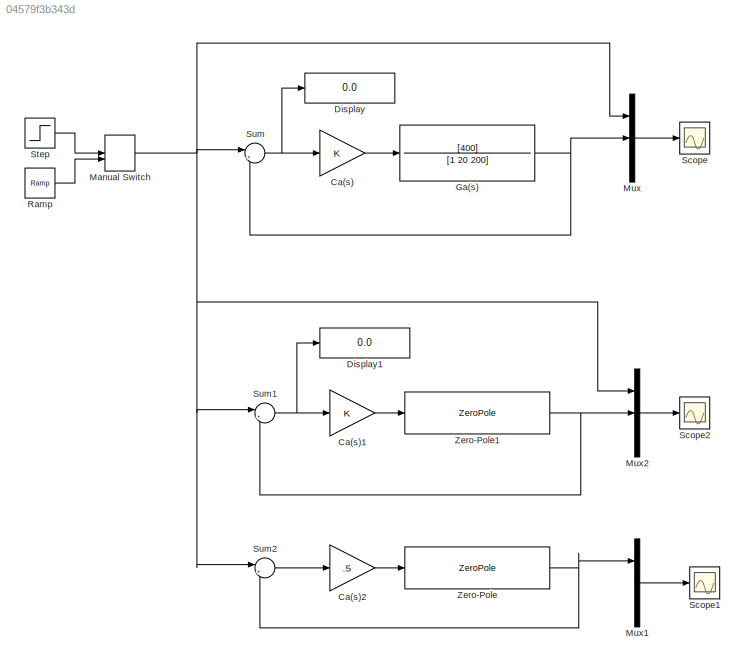
MODEL slx_04579f3b343d
KIND model
CONFIG AbsTol = auto
CONFIG EnableMultiTasking = off
CONFIG FixedStep = .02
CONFIG MaxStep = auto
CONFIG MinStep = auto
CONFIG RelTol = 1e-3
CONFIG SampleTimeConstraint = Unconstrained
CONFIG SolverName = VariableStepAuto
CONFIG StartTime = 0.0
CONFIG StopTime = 50
BLOCK [Gain] Ca(s)
BLOCK [Gain] Ca(s)1
BLOCK [Gain] Ca(s)2
  Gain = .5
BLOCK [Display] Display
  Decimation = 1
BLOCK [Display] Display1
  Decimation = 1
BLOCK [TransferFcn] Ga(s)
  Denominator = [1 20 200]
  Numerator = [400]
BLOCK [ManualSwitch] Manual Switch
  CurrentSetting = 0
BLOCK [Mux] Mux
  DisplayOption = bar
  Inputs = 3
BLOCK [Mux] Mux1
  DisplayOption = bar
  Inputs = 3
BLOCK [Mux] Mux2
  DisplayOption = bar
  Inputs = 3
BLOCK [Reference] Ramp  REF=simulink/Sources/Ramp
  SourceBlock = simulink/Sources/Ramp
  SourceType = Ramp
BLOCK [Scope] Scope
  Floating = off
  NumInputPorts = 1
  ScopeSpecificationString = Simulink.scopes.TimeScopeBlockCfg('CurrentConfiguration', extmgr.ConfigurationSet(extmgr.Configuration('Core','General UI',true),extmgr.Configuration('Core','Source UI',true),extmgr.Configuration('Sources','WiredSimulink',true),extmgr.Configuration('Visuals','Time Domain',true,'SerializedDisplays',{struct('MinYLimReal','0.34223','MaxYLimReal','1.98612','YLabelReal','','MinYLimMag','0.34223','MaxYL...<+1401ch>
BLOCK [Scope] Scope1
  Floating = off
  NumInputPorts = 1
  ScopeSpecificationString = Simulink.scopes.TimeScopeBlockCfg('CurrentConfiguration', extmgr.ConfigurationSet(extmgr.Configuration('Core','General UI',true),extmgr.Configuration('Core','Source UI',true),extmgr.Configuration('Sources','WiredSimulink',true,'DataLoggingVariableName','ScopeData1'),extmgr.Configuration('Visuals','Time Domain',true,'SerializedDisplays',{struct('MinYLimReal','-0.24498','MaxYLimReal','2.20486','YLab...<+1443ch>
BLOCK [Scope] Scope2
  Floating = off
  NumInputPorts = 1
  ScopeSpecificationString = Simulink.scopes.TimeScopeBlockCfg('CurrentConfiguration', extmgr.ConfigurationSet(extmgr.Configuration('Core','General UI',true),extmgr.Configuration('Core','Source UI',true),extmgr.Configuration('Sources','WiredSimulink',true,'DataLoggingVariableName','ScopeData1'),extmgr.Configuration('Visuals','Time Domain',true,'SerializedDisplays',{struct('MinYLimReal','0.34223','MaxYLimReal','1.98612','YLabe...<+1445ch>
BLOCK [Step] Step
  SampleTime = 0
BLOCK [Sum] Sum
  Inputs = |+-
BLOCK [Sum] Sum1
  Inputs = |+-
BLOCK [Sum] Sum2
  Inputs = |+-
BLOCK [ZeroPole] Zero-Pole
  Gain = 10
  Poles = [0 -1 -10]
  Zeros = []
BLOCK [ZeroPole] Zero-Pole1
  Gain = 10
  Poles = [0 -1 -10]
  Zeros = []
LINE Ca(s)1:1 -> Zero-Pole1:1
LINE Ca(s)2:1 -> Zero-Pole:1
LINE Ca(s):1 -> Ga(s):1
NET Ga(s):1 -> Mux:2, Sum:2
NET Manual Switch:1 -> Mux2:1, Mux:1, Sum1:1, Sum2:1, Sum:1
LINE Mux1:1 -> Scope1:1
LINE Mux2:1 -> Scope2:1
LINE Mux:1 -> Scope:1
LINE Ramp:1 -> Manual Switch:2
LINE Step:1 -> Manual Switch:1
NET Sum1:1 -> Ca(s)1:1, Display1:1
LINE Sum2:1 -> Ca(s)2:1
NET Sum:1 -> Ca(s):1, Display:1
NET Zero-Pole1:1 -> Mux2:2, Sum1:2
NET Zero-Pole:1 -> Mux1:1, Sum2:2
note: NET lines group one-source signal fan-out (src -> all destinations, sorted); 1:1 wires keep LINE
